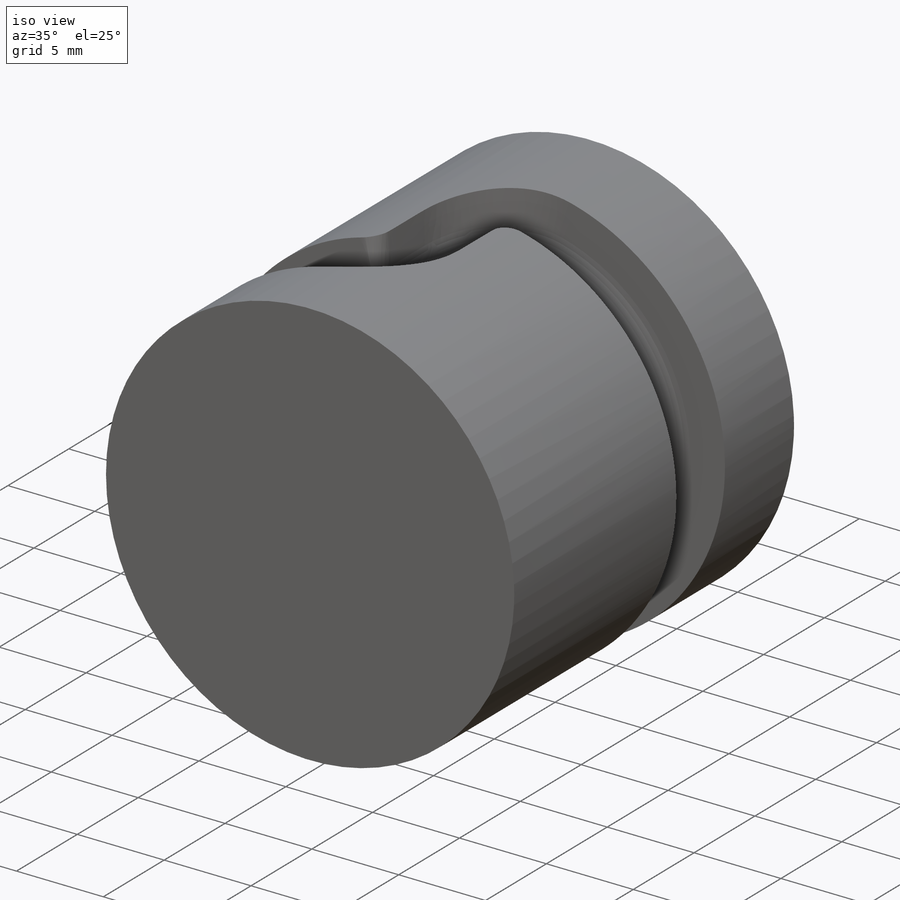
[diagram: iso view]
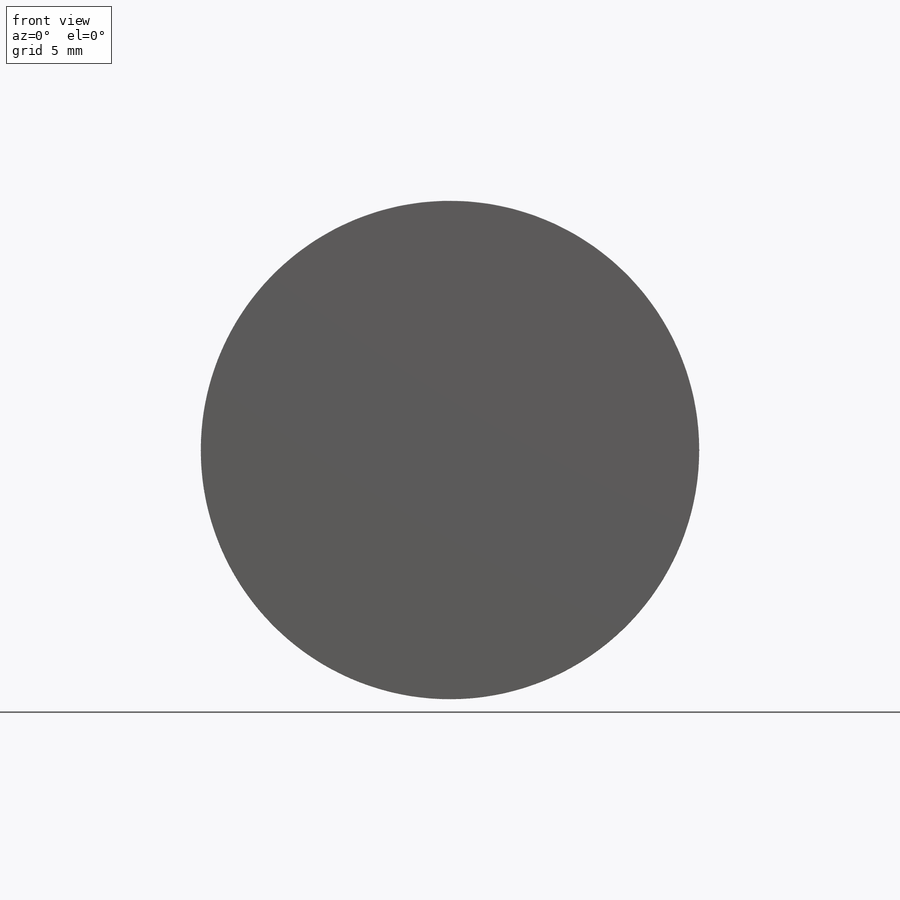
[diagram: front view]
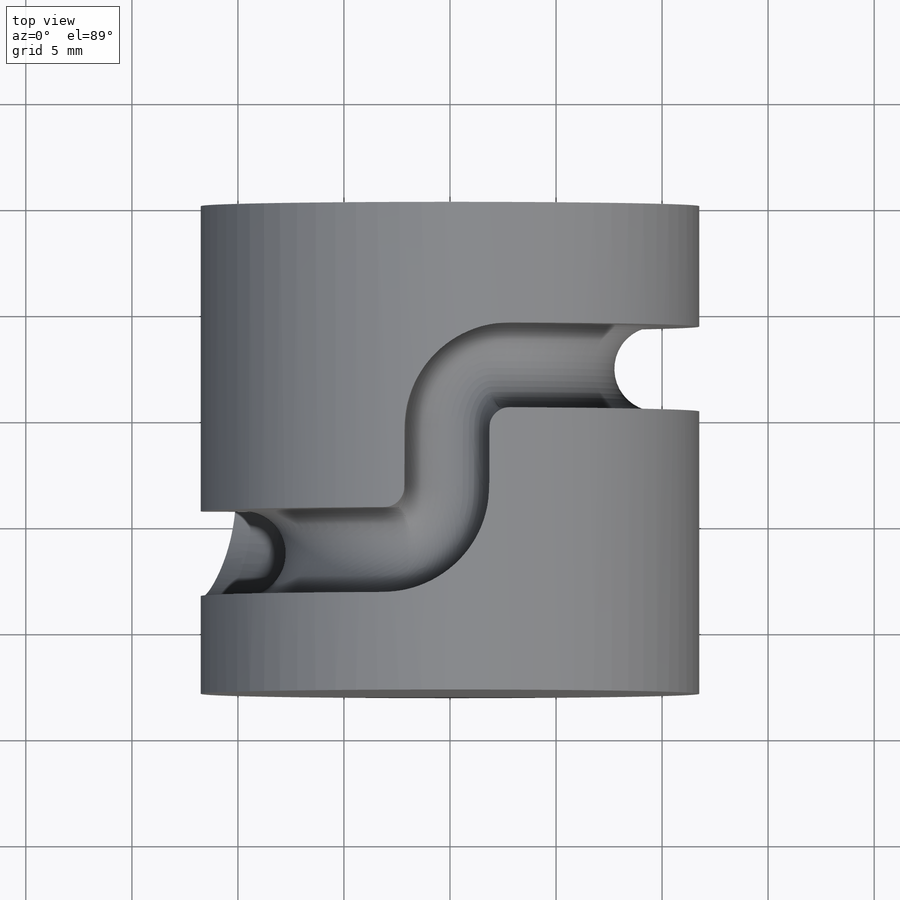
[diagram: top view]
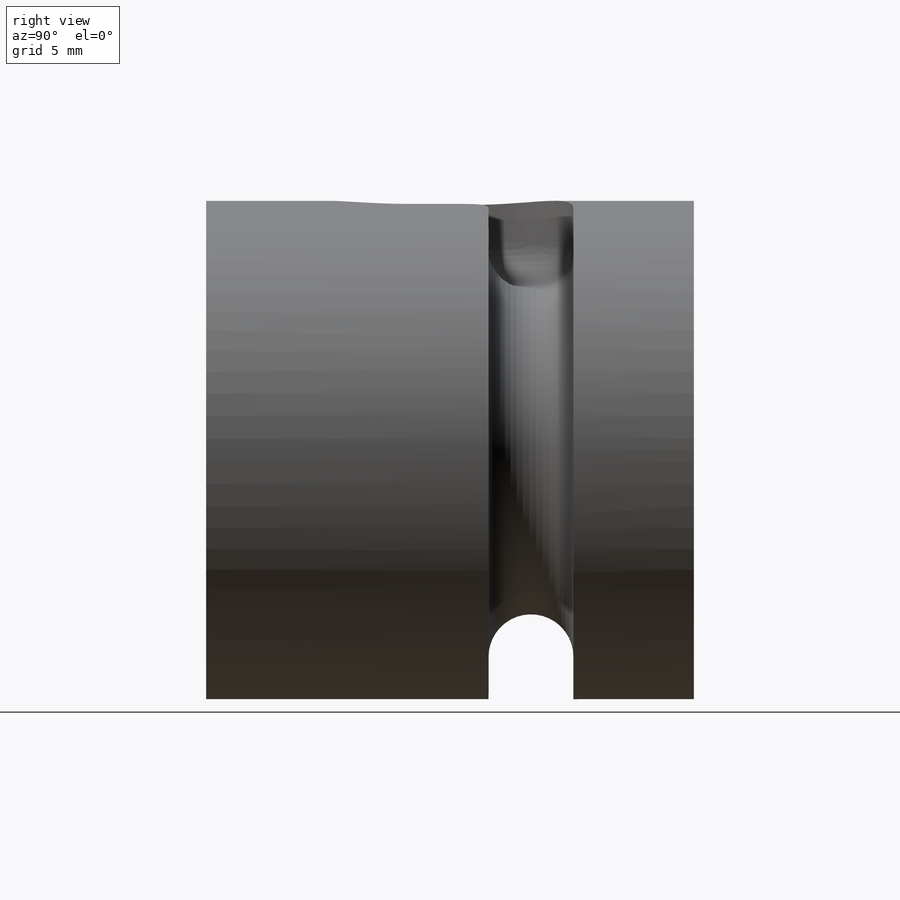
[diagram: right view]
SOLIDWORKS PART (.sldprt)
format: sldprt  version: not decoded by parser v0  size: 667,648 bytes
history: native  units: mm
features: plane x4, sketch x4, material x1, extrude x1, revolve x1, sweep x1 (+10 scaffold rows collapsed)
feature tree (22):
  scaffold x10  (default folders/planes/origin — collapsed)
  material  "Material <nicht festgelegt>"
  plane  "Ebene1"
  plane  "Ebene2"
  plane  "Ebene3"
  sketch  "Skizze1"  dims[D1=23.5mm]
  extrude  "Aufsatz-Linear austragen1"  Depth=23mm
  plane  "Ebene4"
  sketch  "Skizze2"  dims[c1.D4=4.0mm c1.D2=3.0mm c1.D1=10.0mm c2.D2=7.0mm c2.D3=20.0mm c2.D1=~73.827427mm c2.D5=1.0mm c3.D3=1.0mm]
  sketch  "3D-Skizze3"
  sketch  "Skizze3"  dims[D1=2.0mm D2=4.0mm]
  revolve  "Rotation1"  Angle=360deg
  sweep  "Schnitt-Austragung3"
decode coverage: 5 of 7 modeling features carry decoded parameters
note: ~ marks probable driven/reference dimensions
note: suppression state not decoded; provenance and decode notes live in map.json
